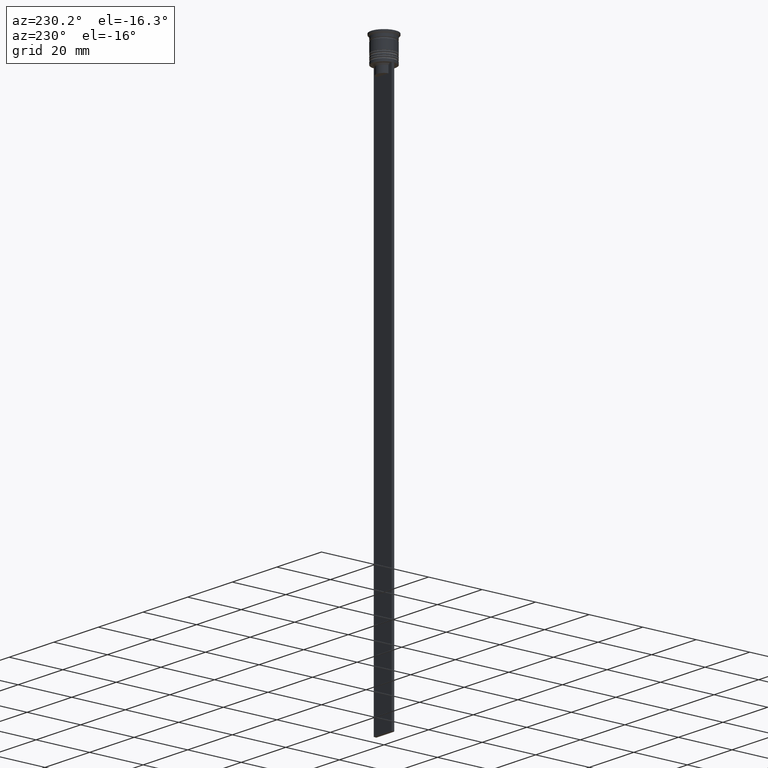
[diagram: clean part render]
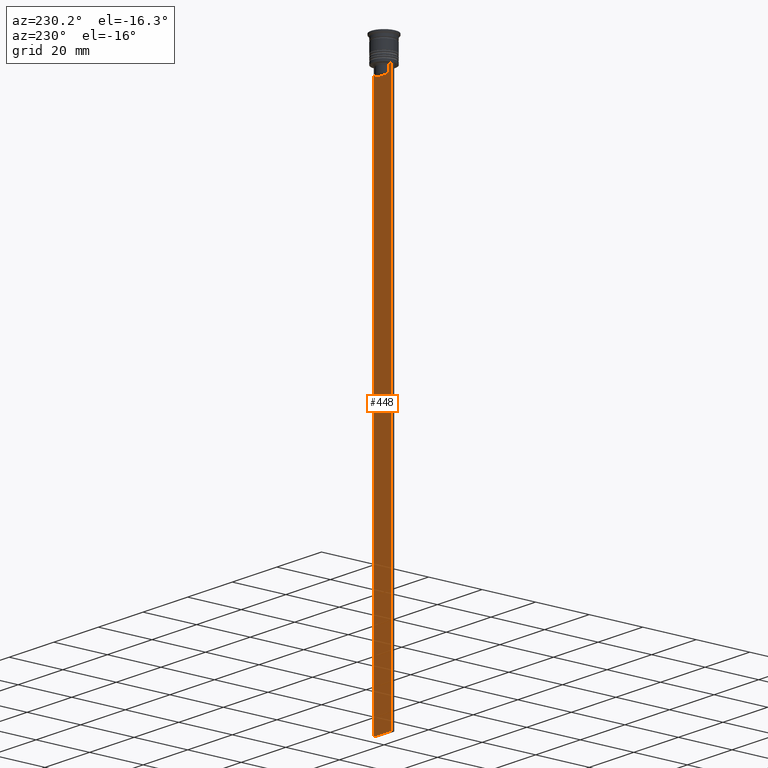
[diagram: same view with one face highlighted and labeled with its STEP entity id]
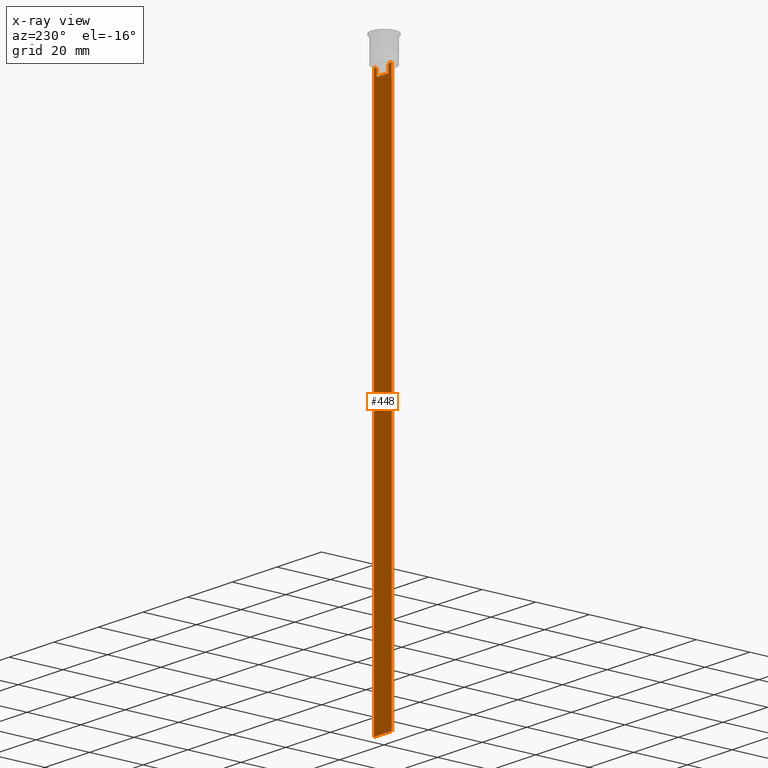
[diagram: x-ray of the same camera — body ghosted, the highlighted face saturated]
A machine part, auxiliary view. The second image highlights one B-rep face of the part: STEP entity #448.
The next image is the same camera in x-ray: the body ghosted, the highlighted face saturated — about 0% of this face is hidden behind the body in this view.
In plain terms, the highlighted planar face has unit normal (0, -1, -0).
Its self-contained STEP definition (entity closure, byte-faithful):
#26 = CARTESIAN_POINT ( 'NONE',  ( -3.110064308016796897, 0.4999999999999995559, -9.500000000000000000 ) ) ;
#56 = CARTESIAN_POINT ( 'NONE',  ( 4.000000000000005329, 0.4999999999999995559, -9.500000000000000000 ) ) ;
#85 = VECTOR ( 'NONE', #2048, 1000.000000000000000 ) ;
#91 = EDGE_CURVE ( 'NONE', #1183, #1519, #1271, .T. ) ;
#113 = CARTESIAN_POINT ( 'NONE',  ( 0.000000000000000000, 0.4999999999999995559, -12.50000000000000000 ) ) ;
#123 = CARTESIAN_POINT ( 'NONE',  ( 2.771864055700302476, 0.4999999999999995559, -9.833582414266677674 ) ) ;
#153 = EDGE_CURVE ( 'NONE', #1363, #2314, #572, .T. ) ;
#202 = LINE ( 'NONE', #2016, #1755 ) ;
#210 = EDGE_CURVE ( 'NONE', #1363, #858, #1731, .T. ) ;
#288 = CARTESIAN_POINT ( 'NONE',  ( -3.999999999999994671, 0.4999999999999997780, -9.500000000000000000 ) ) ;
#302 = EDGE_CURVE ( 'NONE', #422, #2055, #1706, .T. ) ;
#317 = CARTESIAN_POINT ( 'NONE',  ( 3.110064308016796897, 0.4999999999999995559, -9.500000000000000000 ) ) ;
#331 = CARTESIAN_POINT ( 'NONE',  ( 4.000000000000005329, 0.4999999999999995559, -1.437742251701450202 ) ) ;
#399 = EDGE_CURVE ( 'NONE', #2140, #422, #784, .T. ) ;
#405 = B_SPLINE_CURVE_WITH_KNOTS ( 'NONE', 3,
 ( #26, #725, #1459, #2200 ),
 .UNSPECIFIED., .F., .F.,
 ( 4, 4 ),
 ( 0.005378271293598279809, 0.006090816219555997280 ),
 .UNSPECIFIED. ) ;
#422 = VERTEX_POINT ( 'NONE', #317 ) ;
#448 = ADVANCED_FACE ( 'NONE', ( #522 ), #2180, .F. ) ;
#522 = FACE_OUTER_BOUND ( 'NONE', #1550, .T. ) ;
#526 = ORIENTED_EDGE ( 'NONE', *, *, #153, .F. ) ;
#531 = CARTESIAN_POINT ( 'NONE',  ( 4.000000000000005329, 0.4999999999999995559, -209.5000000000000284 ) ) ;
#572 = LINE ( 'NONE', #902, #85 ) ;
#586 = ORIENTED_EDGE ( 'NONE', *, *, #1839, .T. ) ;
#587 = VECTOR ( 'NONE', #1892, 1000.000000000000000 ) ;
#632 = CARTESIAN_POINT ( 'NONE',  ( 4.000000000000005329, 0.4999999999999995559, -9.500000000000000000 ) ) ;
#645 = CARTESIAN_POINT ( 'NONE',  ( 2.941045828809989438, 0.4999999999999995559, -9.666875663357577864 ) ) ;
#722 = CARTESIAN_POINT ( 'NONE',  ( -2.602402735934617350, 0.4999999999999995559, 0.000000000000000000 ) ) ;
#725 = CARTESIAN_POINT ( 'NONE',  ( -2.941047749529105193, 0.4999999999999995559, -9.666873766989334982 ) ) ;
#784 = B_SPLINE_CURVE_WITH_KNOTS ( 'NONE', 3,
 ( #1021, #123, #645, #1792 ),
 .UNSPECIFIED., .F., .F.,
 ( 4, 4 ),
 ( 0.01295151922336847637, 0.01367164596165162602 ),
 .UNSPECIFIED. ) ;
#805 = CARTESIAN_POINT ( 'NONE',  ( -3.110064308016796897, 0.4999999999999995559, -9.500000000000000000 ) ) ;
#811 = ORIENTED_EDGE ( 'NONE', *, *, #1431, .T. ) ;
#858 = VERTEX_POINT ( 'NONE', #805 ) ;
#902 = CARTESIAN_POINT ( 'NONE',  ( -3.999999999999994671, 0.4999999999999995559, -1.437742251701450202 ) ) ;
#909 = DIRECTION ( 'NONE',  ( -1.000000000000000000, 0.000000000000000000, 0.000000000000000000 ) ) ;
#940 = VECTOR ( 'NONE', #2280, 1000.000000000000000 ) ;
#949 = ORIENTED_EDGE ( 'NONE', *, *, #1302, .T. ) ;
#1004 = ORIENTED_EDGE ( 'NONE', *, *, #302, .T. ) ;
#1021 = CARTESIAN_POINT ( 'NONE',  ( 2.602402735934617350, 0.4999999999999995559, -10.00000000000000178 ) ) ;
#1073 = DIRECTION ( 'NONE',  ( 0.000000000000000000, 0.000000000000000000, -1.000000000000000000 ) ) ;
#1122 = VERTEX_POINT ( 'NONE', #2225 ) ;
#1153 = CARTESIAN_POINT ( 'NONE',  ( 4.000000000000005329, 0.4999999999999995559, -9.500000000000000000 ) ) ;
#1162 = ORIENTED_EDGE ( 'NONE', *, *, #399, .T. ) ;
#1172 = EDGE_CURVE ( 'NONE', #858, #1183, #405, .T. ) ;
#1176 = VECTOR ( 'NONE', #1395, 1000.000000000000000 ) ;
#1183 = VERTEX_POINT ( 'NONE', #1676 ) ;
#1271 = LINE ( 'NONE', #722, #1551 ) ;
#1302 = EDGE_CURVE ( 'NONE', #1122, #2140, #1351, .T. ) ;
#1351 = LINE ( 'NONE', #2102, #1749 ) ;
#1363 = VERTEX_POINT ( 'NONE', #288 ) ;
#1395 = DIRECTION ( 'NONE',  ( 0.000000000000000000, 0.000000000000000000, -1.000000000000000000 ) ) ;
#1431 = EDGE_CURVE ( 'NONE', #2055, #1939, #1568, .T. ) ;
#1440 = DIRECTION ( 'NONE',  ( 0.000000000000000000, -1.000000000000000000, -0.000000000000000000 ) ) ;
#1459 = CARTESIAN_POINT ( 'NONE',  ( -2.771866350855961780, 0.4999999999999995559, -9.833580160334840059 ) ) ;
#1519 = VERTEX_POINT ( 'NONE', #2028 ) ;
#1550 = EDGE_LOOP ( 'NONE', ( #1911, #1962, #1880, #586, #949, #1162, #1004, #811, #1928, #526 ) ) ;
#1551 = VECTOR ( 'NONE', #2219, 1000.000000000000000 ) ;
#1554 = AXIS2_PLACEMENT_3D ( 'NONE', #331, #1440, #1073 ) ;
#1568 = LINE ( 'NONE', #2327, #1176 ) ;
#1603 = VECTOR ( 'NONE', #2129, 1000.000000000000000 ) ;
#1676 = CARTESIAN_POINT ( 'NONE',  ( -2.602402735934617350, 0.4999999999999995559, -10.00000000000000178 ) ) ;
#1706 = LINE ( 'NONE', #56, #940 ) ;
#1731 = LINE ( 'NONE', #632, #587 ) ;
#1749 = VECTOR ( 'NONE', #1921, 1000.000000000000000 ) ;
#1755 = VECTOR ( 'NONE', #909, 1000.000000000000000 ) ;
#1792 = CARTESIAN_POINT ( 'NONE',  ( 3.110064308016796897, 0.4999999999999995559, -9.500000000000000000 ) ) ;
#1839 = EDGE_CURVE ( 'NONE', #1519, #1122, #1965, .T. ) ;
#1864 = CARTESIAN_POINT ( 'NONE',  ( 2.602402735934617350, 0.4999999999999995559, -10.00000000000000178 ) ) ;
#1880 = ORIENTED_EDGE ( 'NONE', *, *, #91, .T. ) ;
#1892 = DIRECTION ( 'NONE',  ( 1.000000000000000000, 0.000000000000000000, 0.000000000000000000 ) ) ;
#1911 = ORIENTED_EDGE ( 'NONE', *, *, #210, .T. ) ;
#1921 = DIRECTION ( 'NONE',  ( -0.000000000000000000, -0.000000000000000000, 1.000000000000000000 ) ) ;
#1928 = ORIENTED_EDGE ( 'NONE', *, *, #2323, .T. ) ;
#1939 = VERTEX_POINT ( 'NONE', #531 ) ;
#1962 = ORIENTED_EDGE ( 'NONE', *, *, #1172, .T. ) ;
#1965 = LINE ( 'NONE', #113, #1603 ) ;
#2016 = CARTESIAN_POINT ( 'NONE',  ( 4.000000000000005329, 0.4999999999999995559, -209.5000000000000284 ) ) ;
#2028 = CARTESIAN_POINT ( 'NONE',  ( -2.602402735934617350, 0.4999999999999995559, -12.50000000000000000 ) ) ;
#2048 = DIRECTION ( 'NONE',  ( 0.000000000000000000, 0.000000000000000000, -1.000000000000000000 ) ) ;
#2055 = VERTEX_POINT ( 'NONE', #1153 ) ;
#2069 = CARTESIAN_POINT ( 'NONE',  ( -3.999999999999994671, 0.4999999999999995559, -209.5000000000000284 ) ) ;
#2102 = CARTESIAN_POINT ( 'NONE',  ( 2.602402735934617350, 0.4999999999999995559, 0.000000000000000000 ) ) ;
#2129 = DIRECTION ( 'NONE',  ( 1.000000000000000000, 0.000000000000000000, 0.000000000000000000 ) ) ;
#2140 = VERTEX_POINT ( 'NONE', #1864 ) ;
#2180 = PLANE ( 'NONE',  #1554 ) ;
#2200 = CARTESIAN_POINT ( 'NONE',  ( -2.602402735934617350, 0.4999999999999995559, -10.00000000000000178 ) ) ;
#2219 = DIRECTION ( 'NONE',  ( 0.000000000000000000, 0.000000000000000000, -1.000000000000000000 ) ) ;
#2225 = CARTESIAN_POINT ( 'NONE',  ( 2.602402735934617350, 0.4999999999999995559, -12.50000000000000000 ) ) ;
#2280 = DIRECTION ( 'NONE',  ( 1.000000000000000000, 0.000000000000000000, 0.000000000000000000 ) ) ;
#2314 = VERTEX_POINT ( 'NONE', #2069 ) ;
#2323 = EDGE_CURVE ( 'NONE', #1939, #2314, #202, .T. ) ;
#2327 = CARTESIAN_POINT ( 'NONE',  ( 4.000000000000005329, 0.4999999999999995559, -1.437742251701450202 ) ) ;